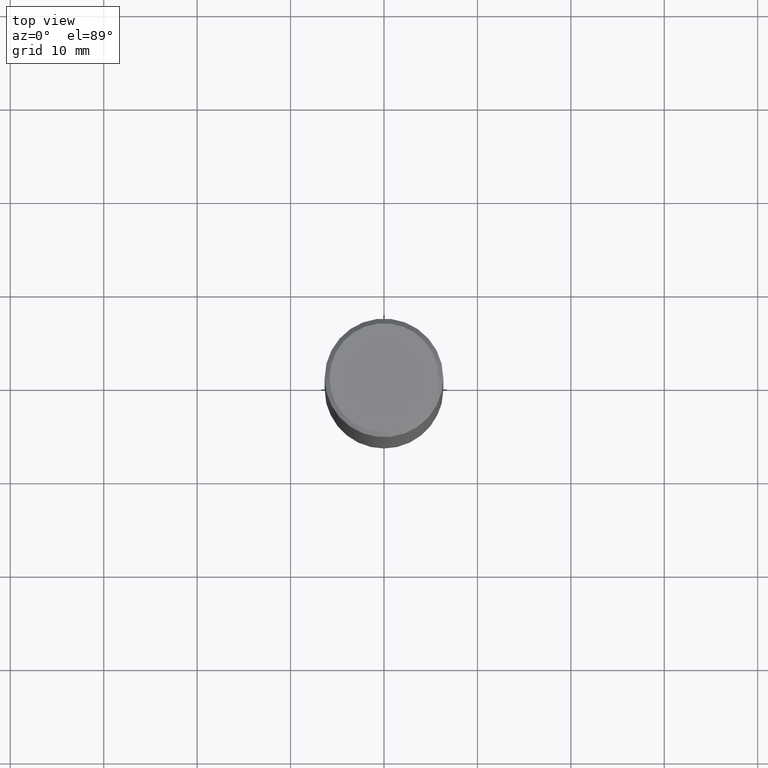
[diagram: clean part render]
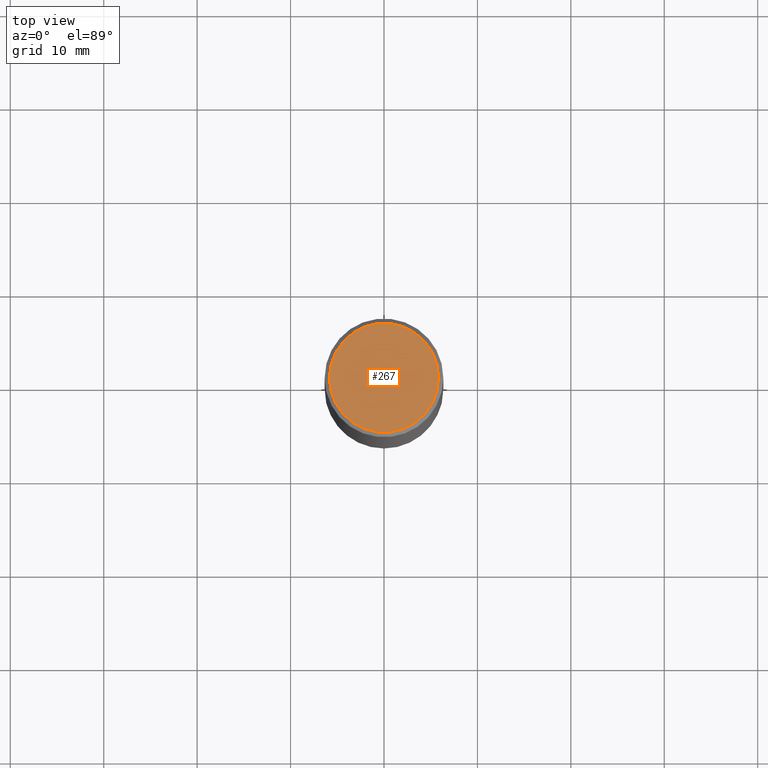
[diagram: same view with one face highlighted and labeled with its STEP entity id]
A machine part, top view. The second image highlights one B-rep face of the part: STEP entity #267.
In plain terms, the highlighted planar face has unit normal (0, -0, -1).
Its self-contained STEP definition (entity closure, byte-faithful):
#23 = VERTEX_POINT ( 'NONE', #92 ) ;
#32 = DIRECTION ( 'NONE',  ( -2.445468806185136597E-29, 3.491481338843145583E-15, 1.000000000000000000 ) ) ;
#35 = DIRECTION ( 'NONE',  ( 1.000000000000000000, -6.982962677686265922E-15, 4.879110437680772635E-29 ) ) ;
#56 = EDGE_CURVE ( 'NONE', #207, #23, #124, .T. ) ;
#57 = DIRECTION ( 'NONE',  ( -1.000000000000000000, 6.982962677686265922E-15, -4.876176775795935793E-29 ) ) ;
#73 = AXIS2_PLACEMENT_3D ( 'NONE', #192, #32, #35 ) ;
#82 = CIRCLE ( 'NONE', #170, 0.2300000000000001488 ) ;
#92 = CARTESIAN_POINT ( 'NONE',  ( 0.2300000000000001488, -1.681434332853599997E-15, -1.365923996832016731E-16 ) ) ;
#124 = CIRCLE ( 'NONE', #73, 0.2300000000000001488 ) ;
#139 = EDGE_LOOP ( 'NONE', ( #146, #204 ) ) ;
#140 = EDGE_CURVE ( 'NONE', #23, #207, #82, .T. ) ;
#146 = ORIENTED_EDGE ( 'NONE', *, *, #56, .T. ) ;
#170 = AXIS2_PLACEMENT_3D ( 'NONE', #383, #291, #265 ) ;
#192 = CARTESIAN_POINT ( 'NONE',  ( 3.340324525872703422E-45, -4.769098145217431040E-31, -1.365923996832131609E-16 ) ) ;
#204 = ORIENTED_EDGE ( 'NONE', *, *, #140, .T. ) ;
#207 = VERTEX_POINT ( 'NONE', #396 ) ;
#213 = CARTESIAN_POINT ( 'NONE',  ( 1.606081415867842251E-15, 0.2300000000000001488, -8.713369077755306147E-16 ) ) ;
#265 = DIRECTION ( 'NONE',  ( 1.000000000000000000, -6.982962677686265922E-15, 4.879110437680772635E-29 ) ) ;
#267 = ADVANCED_FACE ( 'NONE', ( #281 ), #344, .F. ) ;
#281 = FACE_OUTER_BOUND ( 'NONE', #139, .T. ) ;
#283 = AXIS2_PLACEMENT_3D ( 'NONE', #213, #337, #57 ) ;
#291 = DIRECTION ( 'NONE',  ( -2.445468806185136597E-29, 3.491481338843145583E-15, 1.000000000000000000 ) ) ;
#337 = DIRECTION ( 'NONE',  ( 2.438088387897960049E-29, -3.491481338843145188E-15, -1.000000000000000000 ) ) ;
#344 = PLANE ( 'NONE',  #283 ) ;
#383 = CARTESIAN_POINT ( 'NONE',  ( 3.340324525872703422E-45, -4.769098145217431040E-31, -1.365923996832131609E-16 ) ) ;
#396 = CARTESIAN_POINT ( 'NONE',  ( -0.2300000000000001488, 1.640996229256272716E-15, -1.365923996832245008E-16 ) ) ;